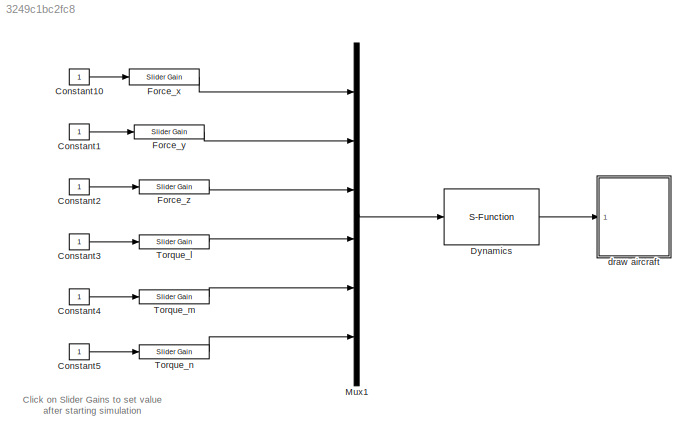
MODEL slx_3249c1bc2fc8
KIND model
CONFIG AbsTol = auto
CONFIG EnableMultiTasking = on
CONFIG FixedStep = auto
CONFIG InitFcn = param_chap3
CONFIG MaxStep = auto
CONFIG MinStep = auto
CONFIG RelTol = 1e-3
CONFIG SampleTimeConstraint = Unconstrained
CONFIG Solver = ode45
CONFIG SolverName = ode45
CONFIG StartTime = 0.0
CONFIG StopTime = 10000
BLOCK [Constant] Constant1
BLOCK [Constant] Constant10
BLOCK [Constant] Constant2
BLOCK [Constant] Constant3
BLOCK [Constant] Constant4
BLOCK [Constant] Constant5
BLOCK [S-Function] Dynamics
  EnableBusSupport = off
  FunctionName = mav_dynamics
  Parameters = P
  Ports = [1, 1]
  SFcnIsStateOwnerBlock = off
  SFunctionDeploymentMode = off
BLOCK [Reference] Force_x  REF=simulink/Math
Operations/Slider
Gain
  Ports = [1, 1]
  SourceBlock = simulink/Math\nOperations/Slider\nGain
  SourceProductBaseCode = SL
  SourceProductName = Simulink
  SourceType = Slider Gain
BLOCK [Reference] Force_y  REF=simulink/Math
Operations/Slider
Gain
  Ports = [1, 1]
  SourceBlock = simulink/Math\nOperations/Slider\nGain
  SourceProductBaseCode = SL
  SourceProductName = Simulink
  SourceType = Slider Gain
BLOCK [Reference] Force_z  REF=simulink/Math
Operations/Slider
Gain
  Ports = [1, 1]
  SourceBlock = simulink/Math\nOperations/Slider\nGain
  SourceProductBaseCode = SL
  SourceProductName = Simulink
  SourceType = Slider Gain
BLOCK [Mux] Mux1
  DisplayOption = bar
  Inputs = 6
  Ports = [6, 1]
BLOCK [Reference] Torque_l  REF=simulink/Math
Operations/Slider
Gain
  Ports = [1, 1]
  SourceBlock = simulink/Math\nOperations/Slider\nGain
  SourceProductBaseCode = SL
  SourceProductName = Simulink
  SourceType = Slider Gain
BLOCK [Reference] Torque_m  REF=simulink/Math
Operations/Slider
Gain
  Ports = [1, 1]
  SourceBlock = simulink/Math\nOperations/Slider\nGain
  SourceProductBaseCode = SL
  SourceProductName = Simulink
  SourceType = Slider Gain
BLOCK [Reference] Torque_n   REF=simulink/Math
Operations/Slider
Gain
  Ports = [1, 1]
  SourceBlock = simulink/Math\nOperations/Slider\nGain
  SourceProductBaseCode = SL
  SourceProductName = Simulink
  SourceType = Slider Gain
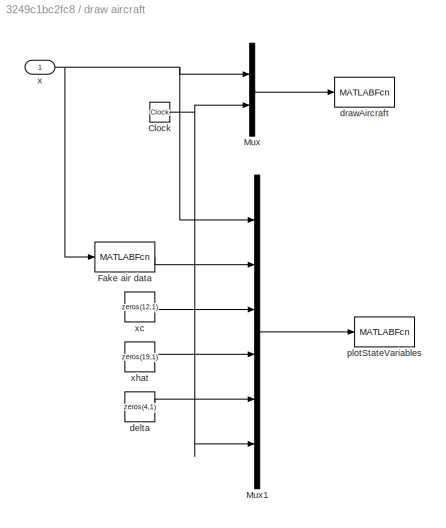
BLOCK [SubSystem] draw aircraft
  Ports = [1]
  RequestExecContextInheritance = off
  Variant = off
BLOCK [Clock] draw aircraft/Clock
BLOCK [MATLABFcn] draw aircraft/Fake air data
  MATLABFcn = airdata(u)
  OutputDimensions = 6
  Ports = [1, 1]
  SampleTime = 0.1
BLOCK [Mux] draw aircraft/Mux
  DisplayOption = bar
  Inputs = 2
  Ports = [2, 1]
BLOCK [Mux] draw aircraft/Mux1
  DisplayOption = bar
  Inputs = 6
  Ports = [6, 1]
BLOCK [Constant] draw aircraft/delta
  Value = zeros(4,1)
BLOCK [MATLABFcn] draw aircraft/drawAircraft
  MATLABFcn = drawVehicle(u)
  OutputDimensions = 0
  Ports = [1]
  SampleTime = 0.1
BLOCK [MATLABFcn] draw aircraft/plotStateVariables
  MATLABFcn = plotmavstatevariables(u)
  OutputDimensions = 0
  Ports = [1]
  SampleTime = 0.1
BLOCK [Inport] draw aircraft/x
  IconDisplay = Port number
BLOCK [Constant] draw aircraft/xc
  Value = zeros(12,1)
BLOCK [Constant] draw aircraft/xhat
  Value = zeros(19,1)
ANNOTATION (root): Click on Slider Gains to set value after starting simulation
LINE Constant10:1 -> Force_x:1
LINE Constant1:1 -> Force_y:1
LINE Constant2:1 -> Force_z:1
LINE Constant3:1 -> Torque_l:1
LINE Constant4:1 -> Torque_m:1
LINE Constant5:1 -> Torque_n :1
LINE Dynamics:1 -> draw aircraft:1
LINE Force_x:1 -> Mux1:1
LINE Force_y:1 -> Mux1:2
LINE Force_z:1 -> Mux1:3
LINE Mux1:1 -> Dynamics:1
LINE Torque_l:1 -> Mux1:4
LINE Torque_m:1 -> Mux1:5
LINE Torque_n :1 -> Mux1:6
NET draw aircraft/Clock:1 -> draw aircraft/Mux1:6, draw aircraft/Mux:2
LINE draw aircraft/Fake air data:1 -> draw aircraft/Mux1:2
LINE draw aircraft/Mux1:1 -> draw aircraft/plotStateVariables:1
LINE draw aircraft/Mux:1 -> draw aircraft/drawAircraft:1
LINE draw aircraft/delta:1 -> draw aircraft/Mux1:5
NET draw aircraft/x:1 -> draw aircraft/Fake air data:1, draw aircraft/Mux1:1, draw aircraft/Mux:1
LINE draw aircraft/xc:1 -> draw aircraft/Mux1:3
LINE draw aircraft/xhat:1 -> draw aircraft/Mux1:4
note: NET lines group one-source signal fan-out (src -> all destinations, sorted); 1:1 wires keep LINE
